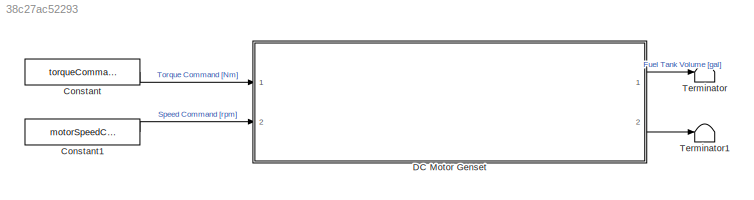
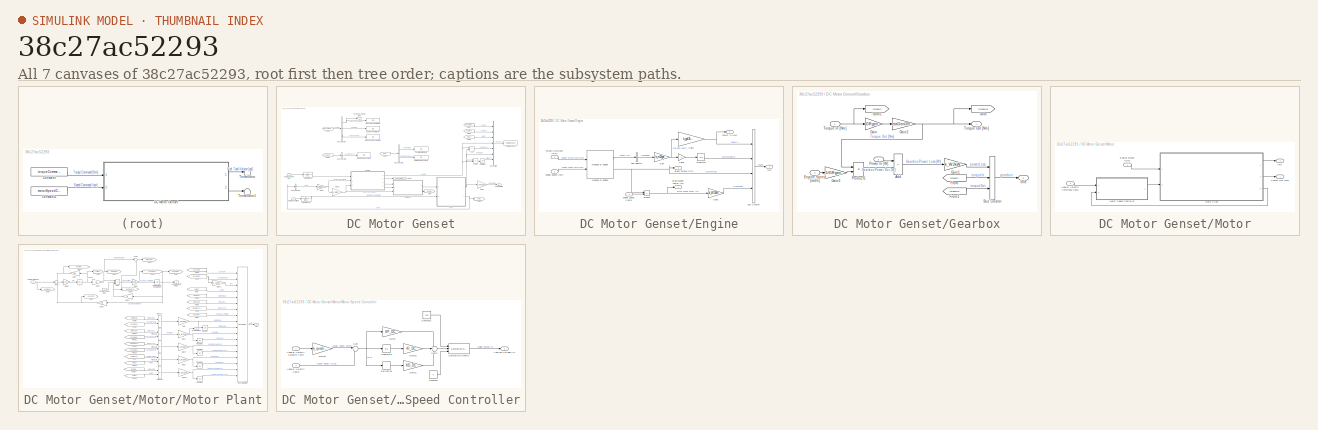
[diagram: thumbnail index - all 7 canvases of the model, root first then tree order]
MODEL slx_38c27ac52293
KIND model
CONFIG AbsTol = auto
CONFIG EnableMultiTasking = off
CONFIG FixedStep = auto
CONFIG MaxStep = auto
CONFIG MinStep = auto
CONFIG RelTol = 1e-3
CONFIG SampleTimeConstraint = Unconstrained
CONFIG SolverName = VariableStepAuto
CONFIG StartTime = 0.0
CONFIG StopTime = tEnd
BLOCK [Constant] Constant
  Value = torqueCommand
BLOCK [Constant] Constant1
  Value = motorSpeedCommand
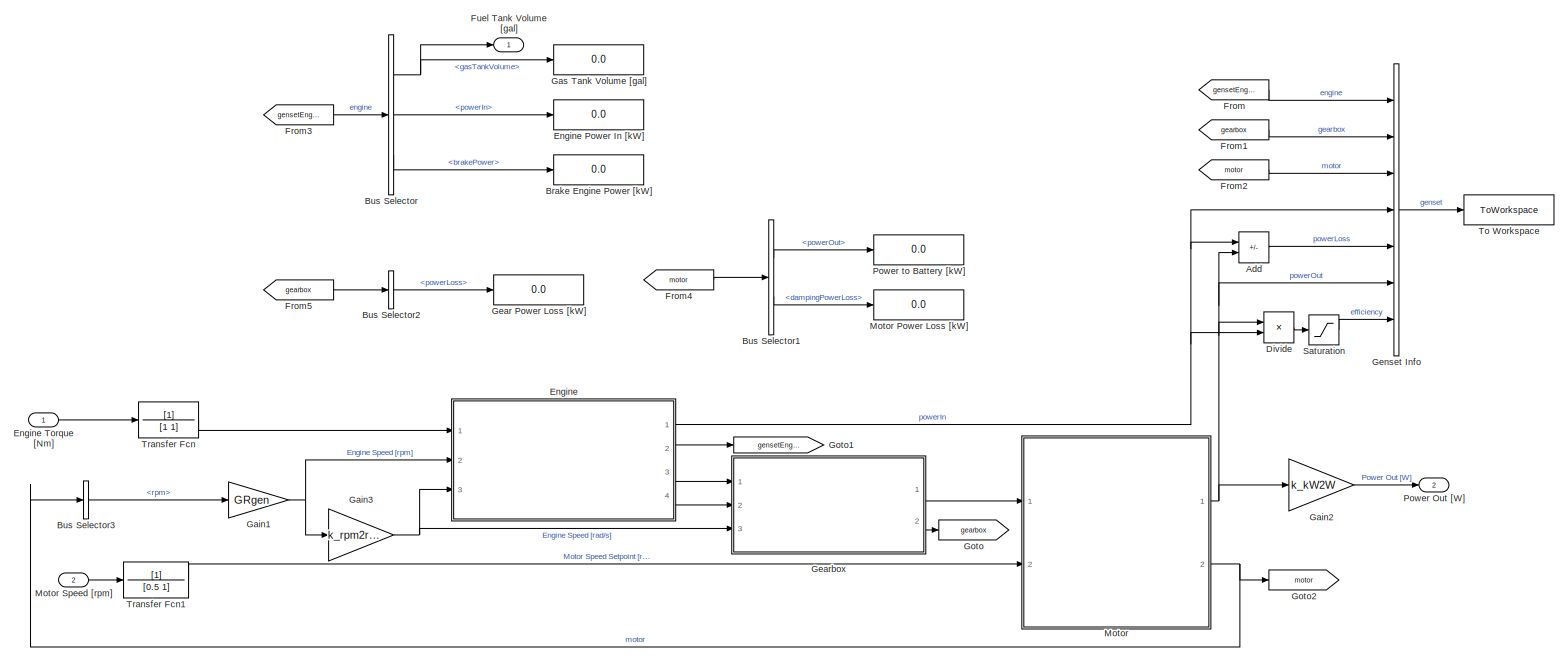
[diagram: DC Motor Genset - part 1/1, most of the canvas]
BLOCK [SubSystem] DC Motor Genset
  Ports = [2, 2]
  RequestExecContextInheritance = off
BLOCK [Sum] DC Motor Genset/Add
  IconShape = rectangular
  Inputs = +-
  Ports = [2, 1]
BLOCK [Display] DC Motor Genset/Brake Engine Power [kW]
  Decimation = 1
  Ports = [1]
BLOCK [BusSelector] DC Motor Genset/Bus Selector
  OutputSignals = gasTankVolume,powerIn,brakePower
  Ports = [1, 3]
BLOCK [BusSelector] DC Motor Genset/Bus Selector1
  OutputSignals = powerOut,dampingPowerLoss
  Ports = [1, 2]
BLOCK [BusSelector] DC Motor Genset/Bus Selector2
  OutputSignals = powerLoss
  Ports = [1, 1]
BLOCK [BusSelector] DC Motor Genset/Bus Selector3
  OutputSignals = rpm
  Ports = [1, 1]
BLOCK [Product] DC Motor Genset/Divide
  Inputs = */
  Ports = [2, 1]
BLOCK [SubSystem] DC Motor Genset/Engine
  Ports = [3, 4]
  RequestExecContextInheritance = off
BLOCK [Display] DC Motor Genset/Engine Power In [kW]
  Decimation = 1
  Ports = [1]
BLOCK [Inport] DC Motor Genset/Engine Torque [Nm]
BLOCK [Outport] DC Motor Genset/Engine/Brake Engine Power [W]
  NameLocation = top
  Port = 4
BLOCK [Outport] DC Motor Genset/Engine/Brake Torque [Nm]
  NameLocation = top
  Port = 3
BLOCK [BusCreator] DC Motor Genset/Engine/Bus Creator
  DisplayOption = bar
  InheritFromInputs = on
  Inputs = 4
  Ports = [4, 1]
BLOCK [BusSelector] DC Motor Genset/Engine/Bus Selector
  OutputSignals = FuelVolFlw
  Ports = [1, 1]
BLOCK [Inport] DC Motor Genset/Engine/Engine Speed [rad//s]
  Port = 3
BLOCK [Inport] DC Motor Genset/Engine/Engine Speed [rpm]
  Port = 2
BLOCK [Gain] DC Motor Genset/Engine/Gain
  Gain = k_m32gal
BLOCK [Gain] DC Motor Genset/Engine/Gain1
  Gain = k_gal2kWh*k_hr2s
BLOCK [Gain] DC Motor Genset/Engine/Gain2
  Gain = k_W2kW
BLOCK [Gain] DC Motor Genset/Engine/Gain3
  Gain = -1
BLOCK [Outport] DC Motor Genset/Engine/Info
  Port = 2
BLOCK [Integrator] DC Motor Genset/Engine/Integrator
  InitialCondition = initialGasVolume
  Ports = [1, 1]
BLOCK [Reference] DC Motor Genset/Engine/Mapped SI Engine  REF=autolibsharedmappedengines/Mapped SI Engine
  Ports = [2, 2]
  SourceBlock = autolibsharedmappedengines/Mapped SI Engine
  SourceProductBaseCode = PW,DR,MT,UV,VE
  SourceType = Mapped SI Engine
BLOCK [Outport] DC Motor Genset/Engine/Power In [kW]
BLOCK [Product] DC Motor Genset/Engine/Product
  Ports = [2, 1]
BLOCK [Inport] DC Motor Genset/Engine/Torque Command [Nm]
  NameLocation = top
BLOCK [From] DC Motor Genset/From
  GotoTag = gensetEngine
  TagVisibility = global
BLOCK [From] DC Motor Genset/From1
  GotoTag = gearbox
BLOCK [From] DC Motor Genset/From2
  GotoTag = motor
BLOCK [From] DC Motor Genset/From3
  GotoTag = gensetEngine
  TagVisibility = global
BLOCK [From] DC Motor Genset/From4
  GotoTag = motor
BLOCK [From] DC Motor Genset/From5
  GotoTag = gearbox
BLOCK [Outport] DC Motor Genset/Fuel Tank Volume [gal]
  NameLocation = top
BLOCK [Gain] DC Motor Genset/Gain1
  Gain = GRgen
BLOCK [Gain] DC Motor Genset/Gain2
  Gain = k_kW2W
BLOCK [Gain] DC Motor Genset/Gain3
  Gain = k_rpm2rps
BLOCK [Display] DC Motor Genset/Gas Tank Volume [gal]
  Decimation = 1
  Ports = [1]
BLOCK [Display] DC Motor Genset/Gear Power Loss [kW]
  Decimation = 1
  Ports = [1]
BLOCK [SubSystem] DC Motor Genset/Gearbox
  Ports = [3, 2]
  RequestExecContextInheritance = off
BLOCK [Sum] DC Motor Genset/Gearbox/Add
  IconShape = rectangular
  Inputs = +-
  Ports = [2, 1]
BLOCK [BusCreator] DC Motor Genset/Gearbox/Bus Creator
  DisplayOption = bar
  InheritFromInputs = on
  Inputs = 3
  Ports = [3, 1]
BLOCK [Inport] DC Motor Genset/Gearbox/Engine Speed [rad//s]
  Port = 3
BLOCK [From] DC Motor Genset/Gearbox/From
  GotoTag = torqueIn
BLOCK [From] DC Motor Genset/Gearbox/From1
  GotoTag = torqueOut
BLOCK [Gain] DC Motor Genset/Gearbox/Gain
  Gain = GRgen
BLOCK [Gain] DC Motor Genset/Gearbox/Gain1
  Gain = k_W2kW
BLOCK [Gain] DC Motor Genset/Gearbox/Gain2
  Gain = etaGenGR
BLOCK [Gain] DC Motor Genset/Gearbox/Gain3
  Gain = 1/GRgen
BLOCK [Goto] DC Motor Genset/Gearbox/Goto
  GotoTag = torqueOut
BLOCK [Goto] DC Motor Genset/Gearbox/Goto1
  GotoTag = torqueIn
BLOCK [Outport] DC Motor Genset/Gearbox/Info
  Port = 2
BLOCK [Inport] DC Motor Genset/Gearbox/Power In [W]
  NameLocation = top
  Port = 2
BLOCK [Product] DC Motor Genset/Gearbox/Product1
  Ports = [2, 1]
BLOCK [Inport] DC Motor Genset/Gearbox/Torque In [Nm]
BLOCK [Outport] DC Motor Genset/Gearbox/Torque Out [Nm]
BLOCK [BusCreator] DC Motor Genset/Genset Info
  DisplayOption = bar
  InheritFromInputs = on
  Inputs = 7
  Ports = [7, 1]
BLOCK [Goto] DC Motor Genset/Goto
  GotoTag = gearbox
BLOCK [Goto] DC Motor Genset/Goto1
  GotoTag = gensetEngine
  TagVisibility = global
BLOCK [Goto] DC Motor Genset/Goto2
  GotoTag = motor
BLOCK [SubSystem] DC Motor Genset/Motor
  Ports = [2, 2]
  RequestExecContextInheritance = off
BLOCK [Display] DC Motor Genset/Motor Power Loss [kW]
  Decimation = 1
  Ports = [1]
BLOCK [Inport] DC Motor Genset/Motor Speed [rpm]
  Port = 2
BLOCK [Inport] DC Motor Genset/Motor/Angular Velocity Command [rpm]
  NameLocation = top
  Port = 2
  VarSizeSig = No
BLOCK [Inport] DC Motor Genset/Motor/Engine Torque [Nm]
  NameLocation = top
  VarSizeSig = No
BLOCK [Outport] DC Motor Genset/Motor/Info
  Port = 2
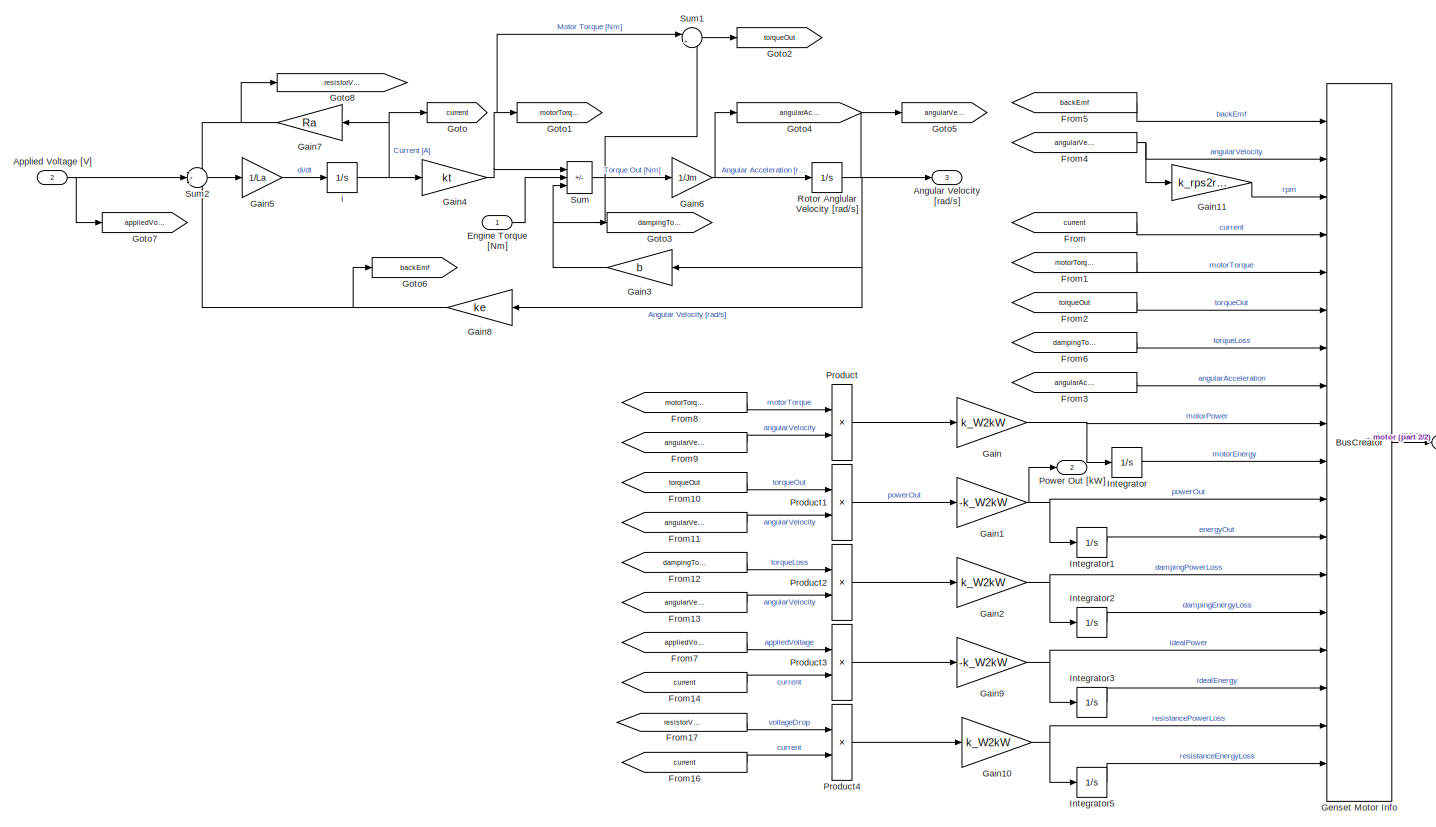
[diagram: DC Motor Genset/Motor/Motor Plant - part 1/2, most of the canvas]
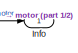
[diagram: DC Motor Genset/Motor/Motor Plant - part 2/2, middle right region]
BLOCK [SubSystem] DC Motor Genset/Motor/Motor Plant
  Ports = [2, 3]
  RequestExecContextInheritance = off
BLOCK [Outport] DC Motor Genset/Motor/Motor Plant/Angular Velocity [rad//s]
  Port = 3
BLOCK [Inport] DC Motor Genset/Motor/Motor Plant/Applied Voltage [V]
  NameLocation = top
  Port = 2
  VarSizeSig = No
BLOCK [Inport] DC Motor Genset/Motor/Motor Plant/Engine Torque [Nm]
BLOCK [From] DC Motor Genset/Motor/Motor Plant/From
  GotoTag = current
BLOCK [From] DC Motor Genset/Motor/Motor Plant/From1
  GotoTag = motorTorque
BLOCK [From] DC Motor Genset/Motor/Motor Plant/From10
  GotoTag = torqueOut
BLOCK [From] DC Motor Genset/Motor/Motor Plant/From11
  GotoTag = angularVelocity
BLOCK [From] DC Motor Genset/Motor/Motor Plant/From12
  GotoTag = dampingTorqueLoss
BLOCK [From] DC Motor Genset/Motor/Motor Plant/From13
  GotoTag = angularVelocity
BLOCK [From] DC Motor Genset/Motor/Motor Plant/From14
  GotoTag = current
BLOCK [From] DC Motor Genset/Motor/Motor Plant/From16
  GotoTag = current
BLOCK [From] DC Motor Genset/Motor/Motor Plant/From17
  GotoTag = resistorVoltageDrop
BLOCK [From] DC Motor Genset/Motor/Motor Plant/From2
  GotoTag = torqueOut
BLOCK [From] DC Motor Genset/Motor/Motor Plant/From3
  GotoTag = angularAcceleration
BLOCK [From] DC Motor Genset/Motor/Motor Plant/From4
  GotoTag = angularVelocity
BLOCK [From] DC Motor Genset/Motor/Motor Plant/From5
  GotoTag = backEmf
BLOCK [From] DC Motor Genset/Motor/Motor Plant/From6
  GotoTag = dampingTorqueLoss
BLOCK [From] DC Motor Genset/Motor/Motor Plant/From7
  GotoTag = appliedVoltage
BLOCK [From] DC Motor Genset/Motor/Motor Plant/From8
  GotoTag = motorTorque
BLOCK [From] DC Motor Genset/Motor/Motor Plant/From9
  GotoTag = angularVelocity
BLOCK [Gain] DC Motor Genset/Motor/Motor Plant/Gain
  Gain = k_W2kW
BLOCK [Gain] DC Motor Genset/Motor/Motor Plant/Gain1
  Gain = -k_W2kW
BLOCK [Gain] DC Motor Genset/Motor/Motor Plant/Gain10
  Gain = k_W2kW
BLOCK [Gain] DC Motor Genset/Motor/Motor Plant/Gain11
  Gain = k_rps2rpm
BLOCK [Gain] DC Motor Genset/Motor/Motor Plant/Gain2
  Gain = k_W2kW
BLOCK [Gain] DC Motor Genset/Motor/Motor Plant/Gain3
  Gain = b
  NameLocation = top
BLOCK [Gain] DC Motor Genset/Motor/Motor Plant/Gain4
  Gain = kt
BLOCK [Gain] DC Motor Genset/Motor/Motor Plant/Gain5
  Gain = 1/La
BLOCK [Gain] DC Motor Genset/Motor/Motor Plant/Gain6
  Gain = 1/Jm
BLOCK [Gain] DC Motor Genset/Motor/Motor Plant/Gain7
  Gain = Ra
  NameLocation = top
BLOCK [Gain] DC Motor Genset/Motor/Motor Plant/Gain8
  Gain = ke
  NameLocation = top
BLOCK [Gain] DC Motor Genset/Motor/Motor Plant/Gain9
  Gain = -k_W2kW
BLOCK [BusCreator] DC Motor Genset/Motor/Motor Plant/Genset Motor Info
  DisplayOption = bar
  InheritFromInputs = on
  Inputs = 18
  Ports = [18, 1]
BLOCK [Goto] DC Motor Genset/Motor/Motor Plant/Goto
  GotoTag = current
BLOCK [Goto] DC Motor Genset/Motor/Motor Plant/Goto1
  GotoTag = motorTorque
BLOCK [Goto] DC Motor Genset/Motor/Motor Plant/Goto2
  GotoTag = torqueOut
BLOCK [Goto] DC Motor Genset/Motor/Motor Plant/Goto3
  GotoTag = dampingTorqueLoss
BLOCK [Goto] DC Motor Genset/Motor/Motor Plant/Goto4
  GotoTag = angularAcceleration
BLOCK [Goto] DC Motor Genset/Motor/Motor Plant/Goto5
  GotoTag = angularVelocity
BLOCK [Goto] DC Motor Genset/Motor/Motor Plant/Goto6
  GotoTag = backEmf
BLOCK [Goto] DC Motor Genset/Motor/Motor Plant/Goto7
  GotoTag = appliedVoltage
BLOCK [Goto] DC Motor Genset/Motor/Motor Plant/Goto8
  GotoTag = resistorVoltageDrop
BLOCK [Outport] DC Motor Genset/Motor/Motor Plant/Info
BLOCK [Integrator] DC Motor Genset/Motor/Motor Plant/Integrator
  Ports = [1, 1]
BLOCK [Integrator] DC Motor Genset/Motor/Motor Plant/Integrator1
  Ports = [1, 1]
BLOCK [Integrator] DC Motor Genset/Motor/Motor Plant/Integrator2
  Ports = [1, 1]
BLOCK [Integrator] DC Motor Genset/Motor/Motor Plant/Integrator3
  Ports = [1, 1]
BLOCK [Integrator] DC Motor Genset/Motor/Motor Plant/Integrator5
  Ports = [1, 1]
BLOCK [Outport] DC Motor Genset/Motor/Motor Plant/Power Out [kW]
  Port = 2
BLOCK [Product] DC Motor Genset/Motor/Motor Plant/Product
  Ports = [2, 1]
BLOCK [Product] DC Motor Genset/Motor/Motor Plant/Product1
  Ports = [2, 1]
BLOCK [Product] DC Motor Genset/Motor/Motor Plant/Product2
  Ports = [2, 1]
BLOCK [Product] DC Motor Genset/Motor/Motor Plant/Product3
  Ports = [2, 1]
BLOCK [Product] DC Motor Genset/Motor/Motor Plant/Product4
  Ports = [2, 1]
BLOCK [Integrator] DC Motor Genset/Motor/Motor Plant/Rotor Anglular Velocity [rad//s]
  Ports = [1, 1]
BLOCK [Sum] DC Motor Genset/Motor/Motor Plant/Sum
  IconShape = rectangular
  Inputs = ++-
  Ports = [3, 1]
BLOCK [Sum] DC Motor Genset/Motor/Motor Plant/Sum1
  Inputs = |+-
  Ports = [2, 1]
BLOCK [Sum] DC Motor Genset/Motor/Motor Plant/Sum2
  Inputs = -+-
  Ports = [3, 1]
BLOCK [Integrator] DC Motor Genset/Motor/Motor Plant/i
  Ports = [1, 1]
BLOCK [SubSystem] DC Motor Genset/Motor/Motor Speed Controller
  Ports = [2, 1]
  RequestExecContextInheritance = off
BLOCK [Inport] DC Motor Genset/Motor/Motor Speed Controller/Angular Velocity Setpoint [rpm]
BLOCK [Inport] DC Motor Genset/Motor/Motor Speed Controller/Angular Velocity [rad//s]
  Port = 2
BLOCK [Outport] DC Motor Genset/Motor/Motor Speed Controller/Applied Voltage [V]
BLOCK [Constant] DC Motor Genset/Motor/Motor Speed Controller/Constant
  Value = 0
BLOCK [Constant] DC Motor Genset/Motor/Motor Speed Controller/Constant1
  Value = 420
BLOCK [Derivative] DC Motor Genset/Motor/Motor Speed Controller/Derivative
BLOCK [Gain] DC Motor Genset/Motor/Motor Speed Controller/Gain10
  Gain = KI_DC
BLOCK [Gain] DC Motor Genset/Motor/Motor Speed Controller/Gain11
  Gain = KD_DC
BLOCK [Gain] DC Motor Genset/Motor/Motor Speed Controller/Gain12
  Gain = k_rpm2rps
BLOCK [Gain] DC Motor Genset/Motor/Motor Speed Controller/Gain9
  Gain = KP_DC
BLOCK [Integrator] DC Motor Genset/Motor/Motor Speed Controller/Integrator3
  Ports = [1, 1]
BLOCK [Reference] DC Motor Genset/Motor/Motor Speed Controller/Saturation Dynamic  REF=simulink/Discontinuities/Saturation
Dynamic
  Ports = [3, 1]
  SourceBlock = simulink/Discontinuities/Saturation\nDynamic
  SourceProductBaseCode = SL
  SourceType = Saturation Dynamic
BLOCK [Sum] DC Motor Genset/Motor/Motor Speed Controller/Sum
  Inputs = |+-
  Ports = [2, 1]
BLOCK [Sum] DC Motor Genset/Motor/Motor Speed Controller/Sum3
  Inputs = +++
  Ports = [3, 1]
BLOCK [Outport] DC Motor Genset/Motor/Power Out [kW]
BLOCK [Outport] DC Motor Genset/Power Out [W]
  NameLocation = top
  Port = 2
BLOCK [Display] DC Motor Genset/Power to Battery [kW]
  Decimation = 1
  Ports = [1]
BLOCK [Saturate] DC Motor Genset/Saturation
  LowerLimit = 0
  UpperLimit = 1
BLOCK [ToWorkspace] DC Motor Genset/To Workspace
  FixptAsFi = on
  MaxDataPoints = inf
  Ports = [1]
  SampleTime = -1
  SaveFormat = Timeseries
  VariableName = genset
BLOCK [TransferFcn] DC Motor Genset/Transfer Fcn
  Denominator = [1 1]
BLOCK [TransferFcn] DC Motor Genset/Transfer Fcn1
  Denominator = [0.5 1]
BLOCK [Terminator] Terminator
BLOCK [Terminator] Terminator1
LINE Constant1:1 -> DC Motor Genset:2
LINE Constant:1 -> DC Motor Genset:1
LINE DC Motor Genset/Add:1 -> DC Motor Genset/Genset Info:5
LINE DC Motor Genset/Bus Selector1:1 -> DC Motor Genset/Power to Battery [kW]:1
LINE DC Motor Genset/Bus Selector1:2 -> DC Motor Genset/Motor Power Loss [kW]:1
LINE DC Motor Genset/Bus Selector2:1 -> DC Motor Genset/Gear Power Loss [kW]:1
LINE DC Motor Genset/Bus Selector3:1 -> DC Motor Genset/Gain1:1
NET DC Motor Genset/Bus Selector:1 -> DC Motor Genset/Fuel Tank Volume [gal]:1, DC Motor Genset/Gas Tank Volume [gal]:1
LINE DC Motor Genset/Bus Selector:2 -> DC Motor Genset/Engine Power In [kW]:1
LINE DC Motor Genset/Bus Selector:3 -> DC Motor Genset/Brake Engine Power [kW]:1
LINE DC Motor Genset/Divide:1 -> DC Motor Genset/Saturation:1
LINE DC Motor Genset/Engine Torque [Nm]:1 -> DC Motor Genset/Transfer Fcn:1
LINE DC Motor Genset/Engine/Bus Creator:1 -> DC Motor Genset/Engine/Info:1
LINE DC Motor Genset/Engine/Bus Selector:1 -> DC Motor Genset/Engine/Gain:1
LINE DC Motor Genset/Engine/Engine Speed [rad//s]:1 -> DC Motor Genset/Engine/Product:2
LINE DC Motor Genset/Engine/Engine Speed [rpm]:1 -> DC Motor Genset/Engine/Mapped SI Engine:2
NET DC Motor Genset/Engine/Gain1:1 -> DC Motor Genset/Engine/Bus Creator:1, DC Motor Genset/Engine/Power In [kW]:1
LINE DC Motor Genset/Engine/Gain2:1 -> DC Motor Genset/Engine/Bus Creator:4
LINE DC Motor Genset/Engine/Gain3:1 -> DC Motor Genset/Engine/Integrator:1
NET DC Motor Genset/Engine/Gain:1 -> DC Motor Genset/Engine/Gain1:1, DC Motor Genset/Engine/Gain3:1
LINE DC Motor Genset/Engine/Integrator:1 -> DC Motor Genset/Engine/Bus Creator:2
LINE DC Motor Genset/Engine/Mapped SI Engine:1 -> DC Motor Genset/Engine/Bus Selector:1
NET DC Motor Genset/Engine/Mapped SI Engine:2 -> DC Motor Genset/Engine/Brake Torque [Nm]:1, DC Motor Genset/Engine/Bus Creator:3, DC Motor Genset/Engine/Product:1
NET DC Motor Genset/Engine/Product:1 -> DC Motor Genset/Engine/Brake Engine Power [W]:1, DC Motor Genset/Engine/Gain2:1
LINE DC Motor Genset/Engine/Torque Command [Nm]:1 -> DC Motor Genset/Engine/Mapped SI Engine:1
NET DC Motor Genset/Engine:1 -> DC Motor Genset/Add:1, DC Motor Genset/Divide:2, DC Motor Genset/Genset Info:4
LINE DC Motor Genset/Engine:2 -> DC Motor Genset/Goto1:1
LINE DC Motor Genset/Engine:3 -> DC Motor Genset/Gearbox:1
LINE DC Motor Genset/Engine:4 -> DC Motor Genset/Gearbox:2
LINE DC Motor Genset/From1:1 -> DC Motor Genset/Genset Info:2
LINE DC Motor Genset/From2:1 -> DC Motor Genset/Genset Info:3
LINE DC Motor Genset/From3:1 -> DC Motor Genset/Bus Selector:1
LINE DC Motor Genset/From4:1 -> DC Motor Genset/Bus Selector1:1
LINE DC Motor Genset/From5:1 -> DC Motor Genset/Bus Selector2:1
LINE DC Motor Genset/From:1 -> DC Motor Genset/Genset Info:1
NET DC Motor Genset/Gain1:1 -> DC Motor Genset/Engine:2, DC Motor Genset/Gain3:1
LINE DC Motor Genset/Gain2:1 -> DC Motor Genset/Power Out [W]:1
NET DC Motor Genset/Gain3:1 -> DC Motor Genset/Engine:3, DC Motor Genset/Gearbox:3
LINE DC Motor Genset/Gearbox/Add:1 -> DC Motor Genset/Gearbox/Gain1:1
LINE DC Motor Genset/Gearbox/Bus Creator:1 -> DC Motor Genset/Gearbox/Info:1
LINE DC Motor Genset/Gearbox/Engine Speed [rad//s]:1 -> DC Motor Genset/Gearbox/Gain3:1
LINE DC Motor Genset/Gearbox/From1:1 -> DC Motor Genset/Gearbox/Bus Creator:3
LINE DC Motor Genset/Gearbox/From:1 -> DC Motor Genset/Gearbox/Bus Creator:2
LINE DC Motor Genset/Gearbox/Gain1:1 -> DC Motor Genset/Gearbox/Bus Creator:1
NET DC Motor Genset/Gearbox/Gain2:1 -> DC Motor Genset/Gearbox/Goto:1, DC Motor Genset/Gearbox/Product1:1, DC Motor Genset/Gearbox/Torque Out [Nm]:1
LINE DC Motor Genset/Gearbox/Gain3:1 -> DC Motor Genset/Gearbox/Product1:2
LINE DC Motor Genset/Gearbox/Gain:1 -> DC Motor Genset/Gearbox/Gain2:1
LINE DC Motor Genset/Gearbox/Power In [W]:1 -> DC Motor Genset/Gearbox/Add:1
LINE DC Motor Genset/Gearbox/Product1:1 -> DC Motor Genset/Gearbox/Add:2
NET DC Motor Genset/Gearbox/Torque In [Nm]:1 -> DC Motor Genset/Gearbox/Gain:1, DC Motor Genset/Gearbox/Goto1:1
LINE DC Motor Genset/Gearbox:1 -> DC Motor Genset/Motor:1
LINE DC Motor Genset/Gearbox:2 -> DC Motor Genset/Goto:1
LINE DC Motor Genset/Genset Info:1 -> DC Motor Genset/To Workspace:1
LINE DC Motor Genset/Motor Speed [rpm]:1 -> DC Motor Genset/Transfer Fcn1:1
LINE DC Motor Genset/Motor/Angular Velocity Command [rpm]:1 -> DC Motor Genset/Motor/Motor Speed Controller:1
LINE DC Motor Genset/Motor/Engine Torque [Nm]:1 -> DC Motor Genset/Motor/Motor Plant:1
NET DC Motor Genset/Motor/Motor Plant/Applied Voltage [V]:1 -> DC Motor Genset/Motor/Motor Plant/Goto7:1, DC Motor Genset/Motor/Motor Plant/Sum2:2
LINE DC Motor Genset/Motor/Motor Plant/Engine Torque [Nm]:1 -> DC Motor Genset/Motor/Motor Plant/Sum:2
LINE DC Motor Genset/Motor/Motor Plant/From10:1 -> DC Motor Genset/Motor/Motor Plant/Product1:1
LINE DC Motor Genset/Motor/Motor Plant/From11:1 -> DC Motor Genset/Motor/Motor Plant/Product1:2
LINE DC Motor Genset/Motor/Motor Plant/From12:1 -> DC Motor Genset/Motor/Motor Plant/Product2:1
LINE DC Motor Genset/Motor/Motor Plant/From13:1 -> DC Motor Genset/Motor/Motor Plant/Product2:2
LINE DC Motor Genset/Motor/Motor Plant/From14:1 -> DC Motor Genset/Motor/Motor Plant/Product3:2
LINE DC Motor Genset/Motor/Motor Plant/From16:1 -> DC Motor Genset/Motor/Motor Plant/Product4:2
LINE DC Motor Genset/Motor/Motor Plant/From17:1 -> DC Motor Genset/Motor/Motor Plant/Product4:1
LINE DC Motor Genset/Motor/Motor Plant/From1:1 -> DC Motor Genset/Motor/Motor Plant/Genset Motor Info:5
LINE DC Motor Genset/Motor/Motor Plant/From2:1 -> DC Motor Genset/Motor/Motor Plant/Genset Motor Info:6
LINE DC Motor Genset/Motor/Motor Plant/From3:1 -> DC Motor Genset/Motor/Motor Plant/Genset Motor Info:8
NET DC Motor Genset/Motor/Motor Plant/From4:1 -> DC Motor Genset/Motor/Motor Plant/Gain11:1, DC Motor Genset/Motor/Motor Plant/Genset Motor Info:2
LINE DC Motor Genset/Motor/Motor Plant/From5:1 -> DC Motor Genset/Motor/Motor Plant/Genset Motor Info:1
LINE DC Motor Genset/Motor/Motor Plant/From6:1 -> DC Motor Genset/Motor/Motor Plant/Genset Motor Info:7
LINE DC Motor Genset/Motor/Motor Plant/From7:1 -> DC Motor Genset/Motor/Motor Plant/Product3:1
LINE DC Motor Genset/Motor/Motor Plant/From8:1 -> DC Motor Genset/Motor/Motor Plant/Product:1
LINE DC Motor Genset/Motor/Motor Plant/From9:1 -> DC Motor Genset/Motor/Motor Plant/Product:2
LINE DC Motor Genset/Motor/Motor Plant/From:1 -> DC Motor Genset/Motor/Motor Plant/Genset Motor Info:4
NET DC Motor Genset/Motor/Motor Plant/Gain10:1 -> DC Motor Genset/Motor/Motor Plant/Genset Motor Info:17, DC Motor Genset/Motor/Motor Plant/Integrator5:1
LINE DC Motor Genset/Motor/Motor Plant/Gain11:1 -> DC Motor Genset/Motor/Motor Plant/Genset Motor Info:3
NET DC Motor Genset/Motor/Motor Plant/Gain1:1 -> DC Motor Genset/Motor/Motor Plant/Genset Motor Info:11, DC Motor Genset/Motor/Motor Plant/Integrator1:1, DC Motor Genset/Motor/Motor Plant/Power Out [kW]:1
NET DC Motor Genset/Motor/Motor Plant/Gain2:1 -> DC Motor Genset/Motor/Motor Plant/Genset Motor Info:13, DC Motor Genset/Motor/Motor Plant/Integrator2:1
NET DC Motor Genset/Motor/Motor Plant/Gain3:1 -> DC Motor Genset/Motor/Motor Plant/Goto3:1, DC Motor Genset/Motor/Motor Plant/Sum1:2, DC Motor Genset/Motor/Motor Plant/Sum:3
NET DC Motor Genset/Motor/Motor Plant/Gain4:1 -> DC Motor Genset/Motor/Motor Plant/Goto1:1, DC Motor Genset/Motor/Motor Plant/Sum1:1, DC Motor Genset/Motor/Motor Plant/Sum:1
LINE DC Motor Genset/Motor/Motor Plant/Gain5:1 -> DC Motor Genset/Motor/Motor Plant/i:1
NET DC Motor Genset/Motor/Motor Plant/Gain6:1 -> DC Motor Genset/Motor/Motor Plant/Goto4:1, DC Motor Genset/Motor/Motor Plant/Rotor Anglular Velocity [rad//s]:1
NET DC Motor Genset/Motor/Motor Plant/Gain7:1 -> DC Motor Genset/Motor/Motor Plant/Goto8:1, DC Motor Genset/Motor/Motor Plant/Sum2:1
NET DC Motor Genset/Motor/Motor Plant/Gain8:1 -> DC Motor Genset/Motor/Motor Plant/Goto6:1, DC Motor Genset/Motor/Motor Plant/Sum2:3
NET DC Motor Genset/Motor/Motor Plant/Gain9:1 -> DC Motor Genset/Motor/Motor Plant/Genset Motor Info:15, DC Motor Genset/Motor/Motor Plant/Integrator3:1
NET DC Motor Genset/Motor/Motor Plant/Gain:1 -> DC Motor Genset/Motor/Motor Plant/Genset Motor Info:9, DC Motor Genset/Motor/Motor Plant/Integrator:1
LINE DC Motor Genset/Motor/Motor Plant/Genset Motor Info:1 -> DC Motor Genset/Motor/Motor Plant/Info:1
LINE DC Motor Genset/Motor/Motor Plant/Integrator1:1 -> DC Motor Genset/Motor/Motor Plant/Genset Motor Info:12
LINE DC Motor Genset/Motor/Motor Plant/Integrator2:1 -> DC Motor Genset/Motor/Motor Plant/Genset Motor Info:14
LINE DC Motor Genset/Motor/Motor Plant/Integrator3:1 -> DC Motor Genset/Motor/Motor Plant/Genset Motor Info:16
LINE DC Motor Genset/Motor/Motor Plant/Integrator5:1 -> DC Motor Genset/Motor/Motor Plant/Genset Motor Info:18
LINE DC Motor Genset/Motor/Motor Plant/Integrator:1 -> DC Motor Genset/Motor/Motor Plant/Genset Motor Info:10
LINE DC Motor Genset/Motor/Motor Plant/Product1:1 -> DC Motor Genset/Motor/Motor Plant/Gain1:1
LINE DC Motor Genset/Motor/Motor Plant/Product2:1 -> DC Motor Genset/Motor/Motor Plant/Gain2:1
LINE DC Motor Genset/Motor/Motor Plant/Product3:1 -> DC Motor Genset/Motor/Motor Plant/Gain9:1
LINE DC Motor Genset/Motor/Motor Plant/Product4:1 -> DC Motor Genset/Motor/Motor Plant/Gain10:1
LINE DC Motor Genset/Motor/Motor Plant/Product:1 -> DC Motor Genset/Motor/Motor Plant/Gain:1
NET DC Motor Genset/Motor/Motor Plant/Rotor Anglular Velocity [rad//s]:1 -> DC Motor Genset/Motor/Motor Plant/Angular Velocity [rad//s]:1, DC Motor Genset/Motor/Motor Plant/Gain3:1, DC Motor Genset/Motor/Motor Plant/Gain8:1, DC Motor Genset/Motor/Motor Plant/Goto5:1
LINE DC Motor Genset/Motor/Motor Plant/Sum1:1 -> DC Motor Genset/Motor/Motor Plant/Goto2:1
LINE DC Motor Genset/Motor/Motor Plant/Sum2:1 -> DC Motor Genset/Motor/Motor Plant/Gain5:1
LINE DC Motor Genset/Motor/Motor Plant/Sum:1 -> DC Motor Genset/Motor/Motor Plant/Gain6:1
NET DC Motor Genset/Motor/Motor Plant/i:1 -> DC Motor Genset/Motor/Motor Plant/Gain4:1, DC Motor Genset/Motor/Motor Plant/Gain7:1, DC Motor Genset/Motor/Motor Plant/Goto:1
LINE DC Motor Genset/Motor/Motor Plant:1 -> DC Motor Genset/Motor/Info:1
LINE DC Motor Genset/Motor/Motor Plant:2 -> DC Motor Genset/Motor/Power Out [kW]:1
LINE DC Motor Genset/Motor/Motor Plant:3 -> DC Motor Genset/Motor/Motor Speed Controller:2
LINE DC Motor Genset/Motor/Motor Speed Controller/Angular Velocity Setpoint [rpm]:1 -> DC Motor Genset/Motor/Motor Speed Controller/Gain12:1
LINE DC Motor Genset/Motor/Motor Speed Controller/Angular Velocity [rad//s]:1 -> DC Motor Genset/Motor/Motor Speed Controller/Sum:2
LINE DC Motor Genset/Motor/Motor Speed Controller/Constant1:1 -> DC Motor Genset/Motor/Motor Speed Controller/Saturation Dynamic:1
LINE DC Motor Genset/Motor/Motor Speed Controller/Constant:1 -> DC Motor Genset/Motor/Motor Speed Controller/Saturation Dynamic:3
LINE DC Motor Genset/Motor/Motor Speed Controller/Derivative:1 -> DC Motor Genset/Motor/Motor Speed Controller/Gain11:1
LINE DC Motor Genset/Motor/Motor Speed Controller/Gain10:1 -> DC Motor Genset/Motor/Motor Speed Controller/Sum3:2
LINE DC Motor Genset/Motor/Motor Speed Controller/Gain11:1 -> DC Motor Genset/Motor/Motor Speed Controller/Sum3:3
LINE DC Motor Genset/Motor/Motor Speed Controller/Gain12:1 -> DC Motor Genset/Motor/Motor Speed Controller/Sum:1
LINE DC Motor Genset/Motor/Motor Speed Controller/Gain9:1 -> DC Motor Genset/Motor/Motor Speed Controller/Sum3:1
LINE DC Motor Genset/Motor/Motor Speed Controller/Integrator3:1 -> DC Motor Genset/Motor/Motor Speed Controller/Gain10:1
LINE DC Motor Genset/Motor/Motor Speed Controller/Saturation Dynamic:1 -> DC Motor Genset/Motor/Motor Speed Controller/Applied Voltage [V]:1
LINE DC Motor Genset/Motor/Motor Speed Controller/Sum3:1 -> DC Motor Genset/Motor/Motor Speed Controller/Saturation Dynamic:2
NET DC Motor Genset/Motor/Motor Speed Controller/Sum:1 -> DC Motor Genset/Motor/Motor Speed Controller/Derivative:1, DC Motor Genset/Motor/Motor Speed Controller/Gain9:1, DC Motor Genset/Motor/Motor Speed Controller/Integrator3:1
LINE DC Motor Genset/Motor/Motor Speed Controller:1 -> DC Motor Genset/Motor/Motor Plant:2
NET DC Motor Genset/Motor:1 -> DC Motor Genset/Add:2, DC Motor Genset/Divide:1, DC Motor Genset/Gain2:1, DC Motor Genset/Genset Info:6
NET DC Motor Genset/Motor:2 -> DC Motor Genset/Bus Selector3:1, DC Motor Genset/Goto2:1
LINE DC Motor Genset/Saturation:1 -> DC Motor Genset/Genset Info:7
LINE DC Motor Genset/Transfer Fcn1:1 -> DC Motor Genset/Motor:2
LINE DC Motor Genset/Transfer Fcn:1 -> DC Motor Genset/Engine:1
LINE DC Motor Genset:1 -> Terminator:1
LINE DC Motor Genset:2 -> Terminator1:1
note: NET lines group one-source signal fan-out (src -> all destinations, sorted); 1:1 wires keep LINE
